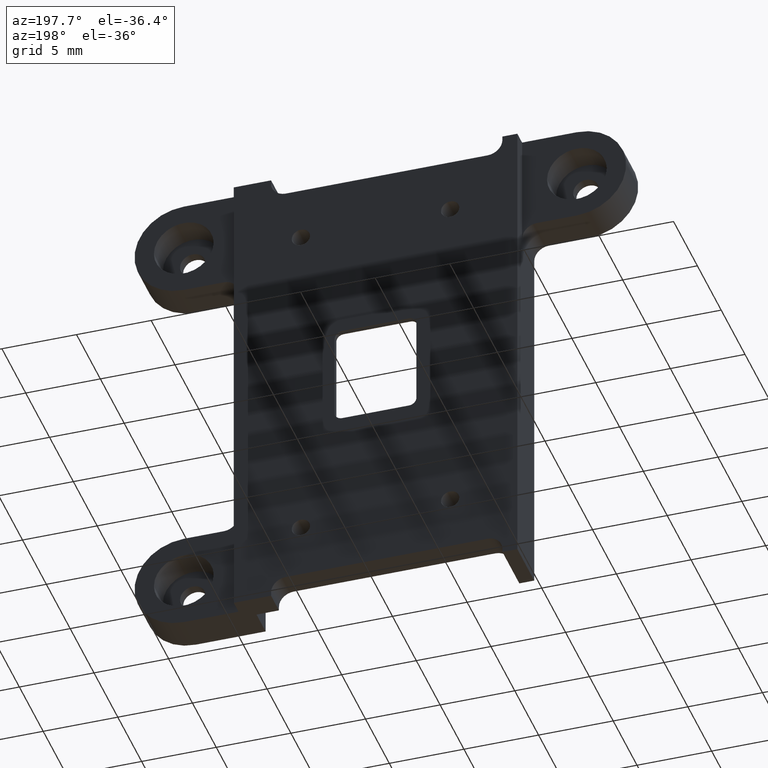
[diagram: clean part render]
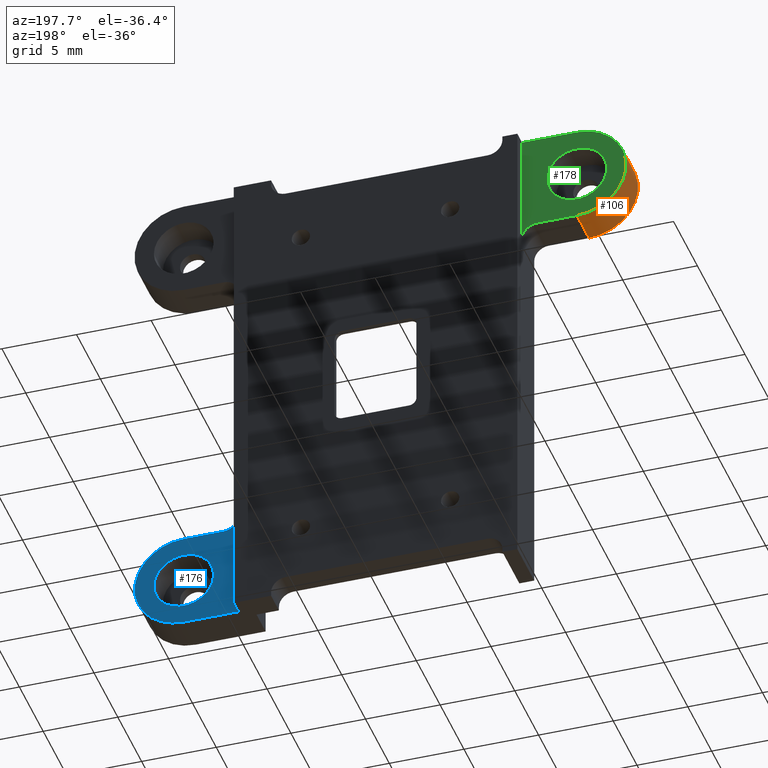
[diagram: same view with three faces highlighted in distinct colors, each labeled with its STEP entity id]
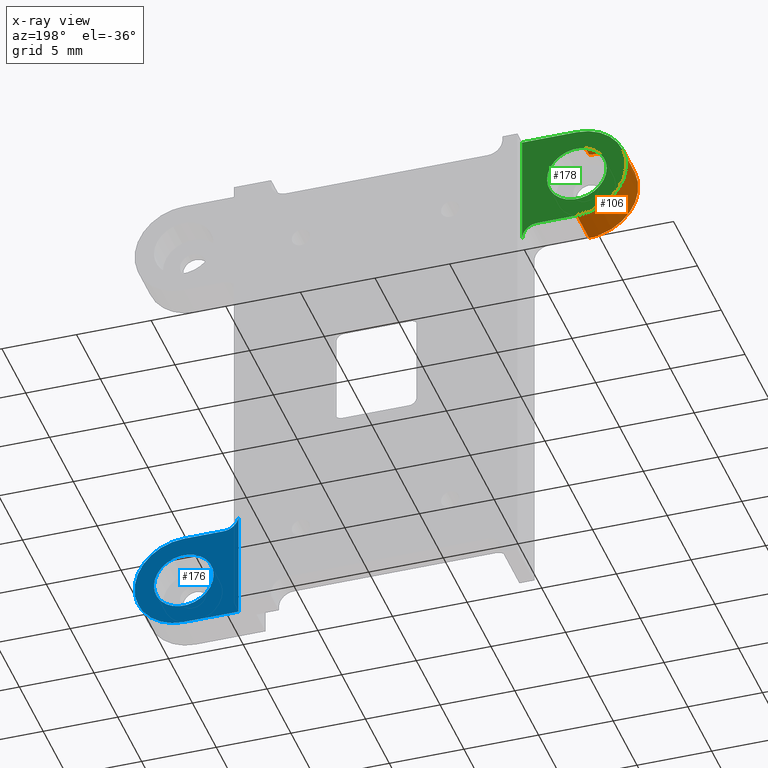
[diagram: x-ray of the same camera — body ghosted, the three highlighted faces saturated]
A machine part, auxiliary view with three faces highlighted in distinct colors.
The next image is the same camera in x-ray (body ghosted, the three faces saturated) — at least one of them is partly hidden behind the body in this view.
Their STEP definitions:

[orange] entity #106 — the highlighted cylindrical surface (partial cylindrical patch) has radius 3.3 mm, axis along (0, 1, 0).
#55=CYLINDRICAL_SURFACE('',#2315,3.29999999999995);
#106=ADVANCED_FACE('',(#217),#55,.T.);
#217=FACE_OUTER_BOUND('',#360,.F.);
#360=EDGE_LOOP('',(#605,#606,#607,#608));
#605=ORIENTED_EDGE('',*,*,#1737,.F.);
#606=ORIENTED_EDGE('',*,*,#1721,.T.);
#607=ORIENTED_EDGE('',*,*,#1738,.T.);
#608=ORIENTED_EDGE('',*,*,#1641,.F.);
#1325=LINE('',#3355,#1508);
#1326=LINE('',#3356,#1509);
#1508=VECTOR('',#2602,2.55);
#1509=VECTOR('',#2603,2.55);
#1641=EDGE_CURVE('',#2118,#2119,#1896,.T.);
#1721=EDGE_CURVE('',#2051,#2050,#1925,.T.);
#1737=EDGE_CURVE('',#2051,#2118,#1325,.T.);
#1738=EDGE_CURVE('',#2050,#2119,#1326,.T.);
#1896=CIRCLE('',#2211,3.29999999999995);
#1925=CIRCLE('',#2240,3.29999999999995);
#2050=VERTEX_POINT('',#3097);
#2051=VERTEX_POINT('',#3098);
#2118=VERTEX_POINT('',#3165);
#2119=VERTEX_POINT('',#3166);
#2211=AXIS2_PLACEMENT_3D('',#3259,#2475,#2476);
#2240=AXIS2_PLACEMENT_3D('',#3339,#2584,#2585);
#2315=AXIS2_PLACEMENT_3D('',#3516,#2836,#2837);
#2475=DIRECTION('',(0.,-1.,0.));
#2476=DIRECTION('',(0.,0.,1.));
#2584=DIRECTION('',(0.,-1.,0.));
#2585=DIRECTION('',(0.,0.,1.));
#2602=DIRECTION('',(0.,1.,0.));
#2603=DIRECTION('',(0.,1.,0.));
#2836=DIRECTION('',(0.,1.,0.));
#2837=DIRECTION('',(0.,0.,-1.));
#3097=CARTESIAN_POINT('',(-13.1698563436557,-14.988,9.86986418926506));
#3098=CARTESIAN_POINT('',(-13.1698563436557,-14.988,16.469864189265));
#3165=CARTESIAN_POINT('',(-13.1698563436557,-12.438,16.469864189265));
#3166=CARTESIAN_POINT('',(-13.1698563436557,-12.438,9.86986418926525));
#3259=CARTESIAN_POINT('',(-13.1698563436557,-12.438,13.169864189265));
#3339=CARTESIAN_POINT('',(-13.1698563436557,-14.988,13.169864189265));
#3355=CARTESIAN_POINT('',(-13.1698563436557,-14.988,16.469864189265));
#3356=CARTESIAN_POINT('',(-13.1698563436557,-14.988,9.86986418926506));
#3516=CARTESIAN_POINT('',(-13.1698563436557,-14.988,13.169864189265));

[blue] entity #176 — the highlighted planar face has unit normal (0, 1, 0).
#176=ADVANCED_FACE('',(#329,#287),#1093,.T.);
#287=FACE_OUTER_BOUND('',#441,.F.);
#329=FACE_BOUND('',#440,.F.);
#440=EDGE_LOOP('',(#937,#938));
#441=EDGE_LOOP('',(#939,#940,#941,#942,#943));
#937=ORIENTED_EDGE('',*,*,#1648,.F.);
#938=ORIENTED_EDGE('',*,*,#1647,.F.);
#939=ORIENTED_EDGE('',*,*,#1847,.T.);
#940=ORIENTED_EDGE('',*,*,#1650,.F.);
#941=ORIENTED_EDGE('',*,*,#1653,.T.);
#942=ORIENTED_EDGE('',*,*,#1652,.F.);
#943=ORIENTED_EDGE('',*,*,#1651,.F.);
#1093=PLANE('',#2385);
#1266=LINE('',#3268,#1449);
#1267=LINE('',#3270,#1450);
#1395=LINE('',#3465,#1578);
#1449=VECTOR('',#2487,3.66836432081499);
#1450=VECTOR('',#2490,2.66836432081858);
#1578=VECTOR('',#2752,7.60000000000867);
#1647=EDGE_CURVE('',#2114,#2113,#1897,.T.);
#1648=EDGE_CURVE('',#2113,#2114,#1898,.T.);
#1650=EDGE_CURVE('',#2111,#2112,#1266,.T.);
#1651=EDGE_CURVE('',#2110,#2109,#1899,.T.);
#1652=EDGE_CURVE('',#2109,#2108,#1267,.T.);
#1653=EDGE_CURVE('',#2111,#2108,#1900,.T.);
#1847=EDGE_CURVE('',#2110,#2112,#1395,.T.);
#1897=CIRCLE('',#2212,2.);
#1898=CIRCLE('',#2213,2.);
#1899=CIRCLE('',#2214,1.);
#1900=CIRCLE('',#2215,3.29999999999995);
#2108=VERTEX_POINT('',#3155);
#2109=VERTEX_POINT('',#3156);
#2110=VERTEX_POINT('',#3157);
#2111=VERTEX_POINT('',#3158);
#2112=VERTEX_POINT('',#3159);
#2113=VERTEX_POINT('',#3160);
#2114=VERTEX_POINT('',#3161);
#2212=AXIS2_PLACEMENT_3D('',#3265,#2482,#2483);
#2213=AXIS2_PLACEMENT_3D('',#3266,#2484,#2485);
#2214=AXIS2_PLACEMENT_3D('',#3269,#2488,#2489);
#2215=AXIS2_PLACEMENT_3D('',#3271,#2491,#2492);
#2385=AXIS2_PLACEMENT_3D('',#3586,#2976,#2977);
#2482=DIRECTION('',(0.,-1.,0.));
#2483=DIRECTION('',(1.,0.,0.));
#2484=DIRECTION('',(0.,-1.,0.));
#2485=DIRECTION('',(-1.,0.,0.));
#2487=DIRECTION('',(-1.,0.,0.));
#2488=DIRECTION('',(0.,-1.,0.));
#2489=DIRECTION('',(-1.,0.,0.));
#2490=DIRECTION('',(1.,0.,0.));
#2491=DIRECTION('',(0.,-1.,0.));
#2492=DIRECTION('',(0.,0.,-1.));
#2752=DIRECTION('',(0.,0.,-1.));
#2976=DIRECTION('',(0.,1.,0.));
#2977=DIRECTION('',(0.,0.,-1.));
#3155=CARTESIAN_POINT('',(13.1683717738189,-12.438,-9.86985955102491));
#3156=CARTESIAN_POINT('',(10.5000074530004,-12.438,-9.86985955102427));
#3157=CARTESIAN_POINT('',(9.50000745300009,-12.438,-8.86985955101737));
#3158=CARTESIAN_POINT('',(13.1683717738177,-12.438,-16.469859551026));
#3159=CARTESIAN_POINT('',(9.50000745300015,-12.438,-16.4698595510256));
#3160=CARTESIAN_POINT('',(11.1683717738187,-12.438,-13.1698595510255));
#3161=CARTESIAN_POINT('',(15.1683717738187,-12.438,-13.1698595510255));
#3265=CARTESIAN_POINT('',(13.1683717738187,-12.438,-13.1698595510255));
#3266=CARTESIAN_POINT('',(13.1683717738187,-12.438,-13.1698595510255));
#3268=CARTESIAN_POINT('',(13.1683717738151,-12.438,-16.4698595510267));
#3269=CARTESIAN_POINT('',(10.5000074529999,-12.438,-8.86985955102601));
#3270=CARTESIAN_POINT('',(10.5000074530004,-12.438,-9.86985955102339));
#3271=CARTESIAN_POINT('',(13.1683717738189,-12.438,-13.1698595510256));
#3465=CARTESIAN_POINT('',(9.50000745300015,-12.438,-8.86985955101737));
#3586=CARTESIAN_POINT('',(9.41000745300015,-12.438,-8.77985955101737));

[green] entity #178 — the highlighted planar face has unit normal (0, 1, 0).
#178=ADVANCED_FACE('',(#330,#289),#1095,.T.);
#289=FACE_OUTER_BOUND('',#444,.F.);
#330=FACE_BOUND('',#443,.F.);
#443=EDGE_LOOP('',(#948,#949));
#444=EDGE_LOOP('',(#950,#951,#952,#953,#954,#955));
#948=ORIENTED_EDGE('',*,*,#1638,.F.);
#949=ORIENTED_EDGE('',*,*,#1637,.F.);
#950=ORIENTED_EDGE('',*,*,#1848,.T.);
#951=ORIENTED_EDGE('',*,*,#1644,.F.);
#952=ORIENTED_EDGE('',*,*,#1642,.F.);
#953=ORIENTED_EDGE('',*,*,#1641,.T.);
#954=ORIENTED_EDGE('',*,*,#1640,.F.);
#955=ORIENTED_EDGE('',*,*,#1639,.F.);
#1095=PLANE('',#2387);
#1259=LINE('',#3258,#1442);
#1260=LINE('',#3260,#1443);
#1262=LINE('',#3262,#1445);
#1396=LINE('',#3466,#1579);
#1442=VECTOR('',#2474,2.66986379665813);
#1443=VECTOR('',#2477,1.66986379665412);
#1445=VECTOR('',#2479,2.00000000000249);
#1579=VECTOR('',#2753,7.60000000000061);
#1637=EDGE_CURVE('',#2123,#2122,#1893,.T.);
#1638=EDGE_CURVE('',#2122,#2123,#1894,.T.);
#1639=EDGE_CURVE('',#2121,#2120,#1895,.T.);
#1640=EDGE_CURVE('',#2120,#2119,#1259,.T.);
#1641=EDGE_CURVE('',#2118,#2119,#1896,.T.);
#1642=EDGE_CURVE('',#2118,#2117,#1260,.T.);
#1644=EDGE_CURVE('',#2117,#2116,#1262,.T.);
#1848=EDGE_CURVE('',#2121,#2116,#1396,.T.);
#1893=CIRCLE('',#2208,2.);
#1894=CIRCLE('',#2209,2.);
#1895=CIRCLE('',#2210,1.);
#1896=CIRCLE('',#2211,3.29999999999995);
#2116=VERTEX_POINT('',#3163);
#2117=VERTEX_POINT('',#3164);
#2118=VERTEX_POINT('',#3165);
#2119=VERTEX_POINT('',#3166);
#2120=VERTEX_POINT('',#3167);
#2121=VERTEX_POINT('',#3168);
#2122=VERTEX_POINT('',#3169);
#2123=VERTEX_POINT('',#3170);
#2208=AXIS2_PLACEMENT_3D('',#3255,#2468,#2469);
#2209=AXIS2_PLACEMENT_3D('',#3256,#2470,#2471);
#2210=AXIS2_PLACEMENT_3D('',#3257,#2472,#2473);
#2211=AXIS2_PLACEMENT_3D('',#3259,#2475,#2476);
#2387=AXIS2_PLACEMENT_3D('',#3588,#2980,#2981);
#2468=DIRECTION('',(0.,-1.,0.));
#2469=DIRECTION('',(1.,0.,0.));
#2470=DIRECTION('',(0.,-1.,0.));
#2471=DIRECTION('',(-1.,0.,0.));
#2472=DIRECTION('',(0.,-1.,0.));
#2473=DIRECTION('',(1.,0.,0.));
#2474=DIRECTION('',(-1.,0.,0.));
#2475=DIRECTION('',(0.,-1.,0.));
#2476=DIRECTION('',(0.,0.,1.));
#2477=DIRECTION('',(1.,0.,0.));
#2479=DIRECTION('',(1.,0.,0.));
#2753=DIRECTION('',(0.,0.,1.));
#2980=DIRECTION('',(0.,1.,0.));
#2981=DIRECTION('',(0.,0.,-1.));
#3163=CARTESIAN_POINT('',(-9.49999254699907,-12.438,16.4698641892644));
#3164=CARTESIAN_POINT('',(-11.4999925470016,-12.438,16.4698641892645));
#3165=CARTESIAN_POINT('',(-13.1698563436557,-12.438,16.469864189265));
#3166=CARTESIAN_POINT('',(-13.1698563436557,-12.438,9.86986418926525));
#3167=CARTESIAN_POINT('',(-10.4999925469975,-12.438,9.86986418926438));
#3168=CARTESIAN_POINT('',(-9.49999254699907,-12.438,8.8698641892604));
#3169=CARTESIAN_POINT('',(-15.169856343656,-12.438,13.1698641892651));
#3170=CARTESIAN_POINT('',(-11.169856343656,-12.438,13.1698641892651));
#3255=CARTESIAN_POINT('',(-13.169856343656,-12.438,13.1698641892651));
#3256=CARTESIAN_POINT('',(-13.169856343656,-12.438,13.1698641892651));
#3257=CARTESIAN_POINT('',(-10.4999925469991,-12.438,8.86986418926415));
#3258=CARTESIAN_POINT('',(-10.4999925469975,-12.438,9.8698641892645));
#3259=CARTESIAN_POINT('',(-13.1698563436557,-12.438,13.169864189265));
#3260=CARTESIAN_POINT('',(-13.1698563436557,-12.438,16.469864189265));
#3262=CARTESIAN_POINT('',(-11.4999925470016,-12.438,16.4698641892643));
#3466=CARTESIAN_POINT('',(-9.49999254699907,-12.438,8.86986418926414));
#3588=CARTESIAN_POINT('',(-16.5899925469991,-12.438,17.9598641892641));